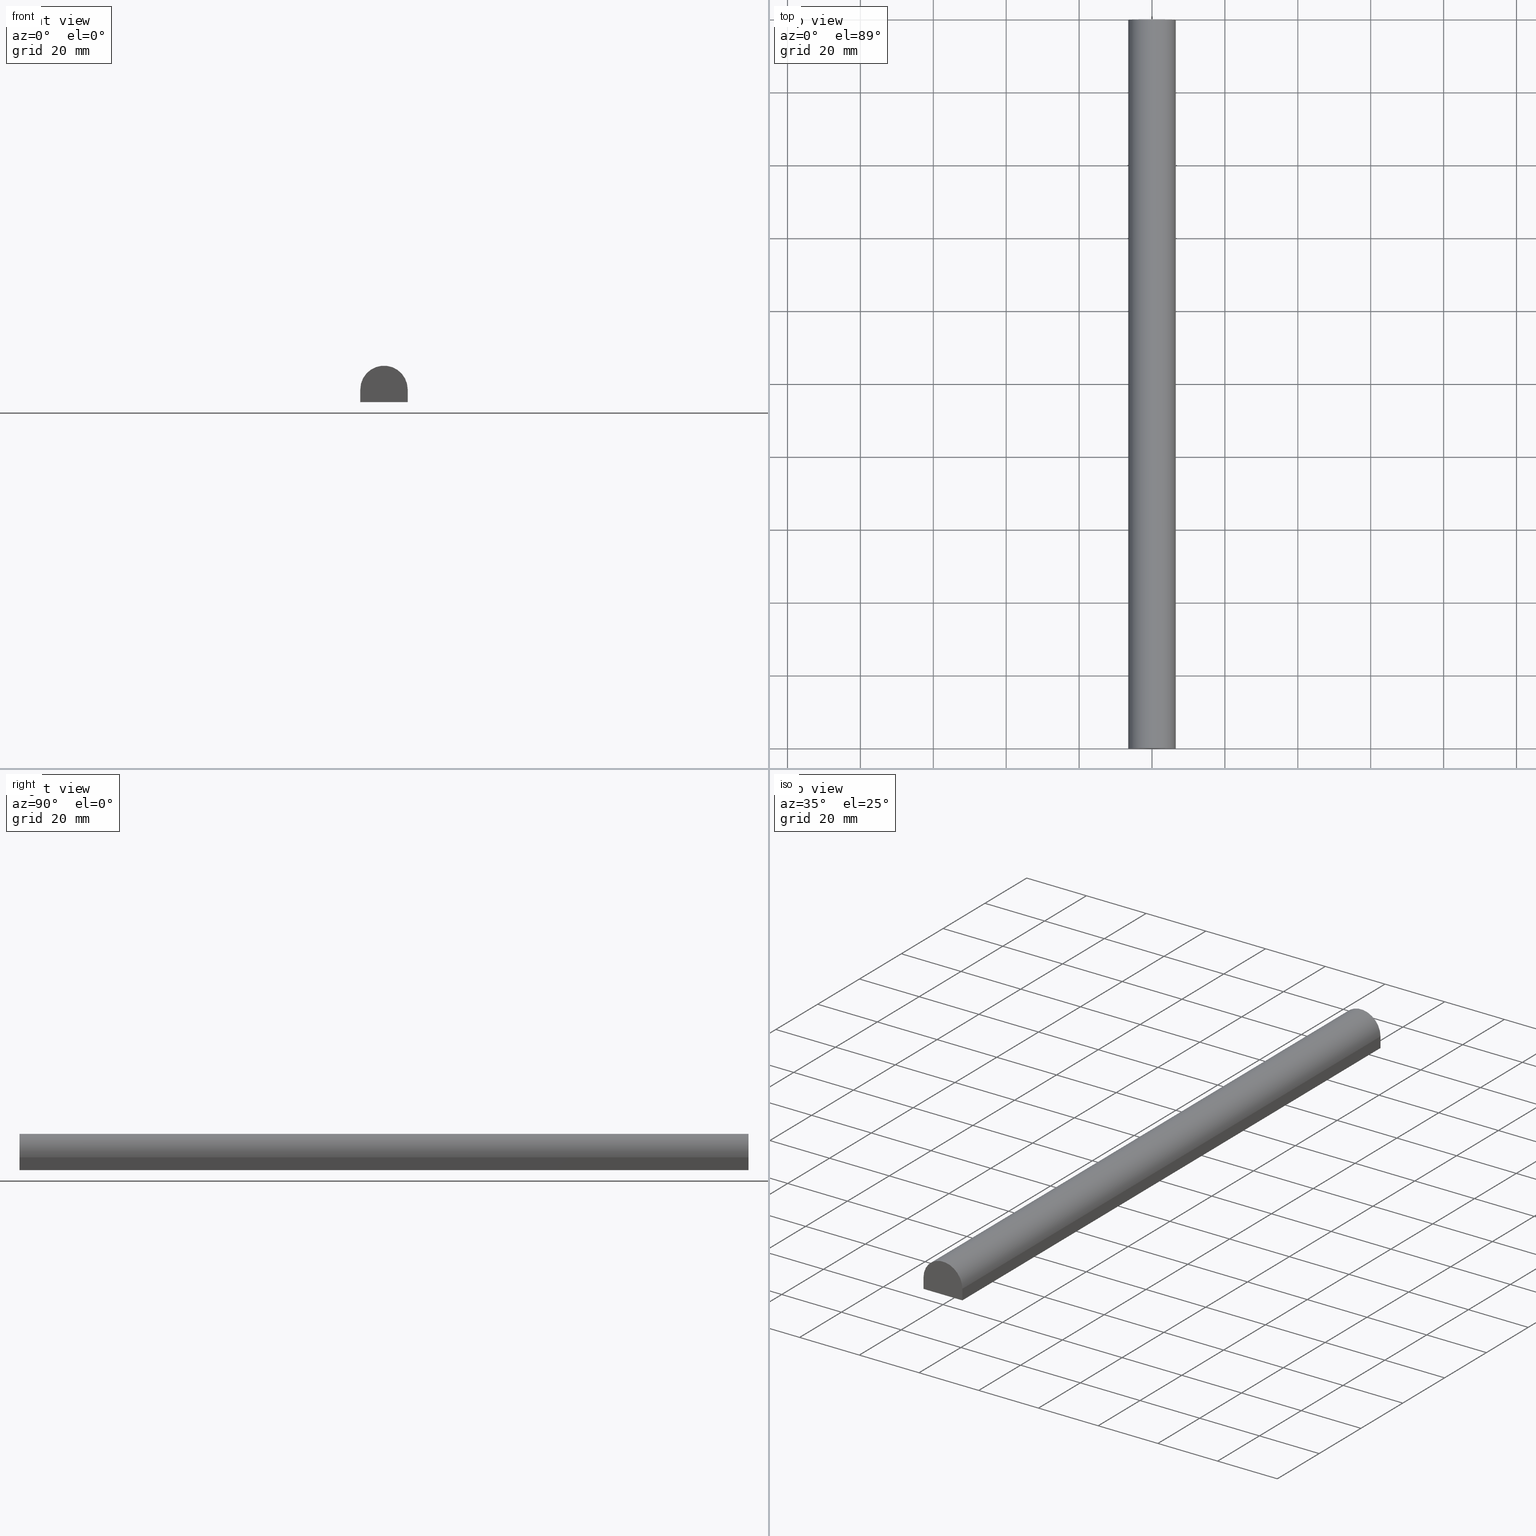
[diagram: canonical four-view strip — front | top / right | iso, engineering-drawing reading convention]
A machine part, canonical four-view strip (front | top / right | iso — engineering-drawing reading convention). The complete STEP part file that produces these views, byte-faithful:
ISO-10303-21;
HEADER;
FILE_DESCRIPTION (( 'STEP AP214' ),
    '1' );
FILE_NAME ('TM_341W_5.STEP',
    '2016-05-10T04:14:55',
    ( '' ),
    ( '' ),
    'SwSTEP 2.0',
    'SolidWorks 2015',
    '' );
FILE_SCHEMA (( 'AUTOMOTIVE_DESIGN' ));
ENDSEC;

DATA;
#1 = VERTEX_POINT ( 'NONE', #234 ) ;
#2 = STYLED_ITEM ( 'NONE', ( #117 ), #193 ) ;
#3 = CARTESIAN_POINT ( 'NONE',  ( -6.500000000000000000, 1000.000000000000000, -5.000000000000000000 ) ) ;
#4 = CARTESIAN_POINT ( 'NONE',  ( 0.0000000000000000000, 0.0000000000000000000, 0.0000000000000000000 ) ) ;
#5 = CARTESIAN_POINT ( 'NONE',  ( 6.500000000000000000, 1000.000000000000000, -5.000000000000000000 ) ) ;
#6 = PLANE ( 'NONE',  #60 ) ;
#7 = AXIS2_PLACEMENT_3D ( 'NONE', #79, #198, #221 ) ;
#8 = CARTESIAN_POINT ( 'NONE',  ( 6.500000000000000000, 1000.000000000000000, -1.500000000000000000 ) ) ;
#9 = VECTOR ( 'NONE', #52, 1000.000000000000000 ) ;
#10 = CARTESIAN_POINT ( 'NONE',  ( 0.0000000000000000000, 0.0000000000000000000, -5.000000000000000000 ) ) ;
#11 = ORIENTED_EDGE ( 'NONE', *, *, #72, .T. ) ;
#12 =( GEOMETRIC_REPRESENTATION_CONTEXT ( 3 ) GLOBAL_UNCERTAINTY_ASSIGNED_CONTEXT ( ( #155 ) ) GLOBAL_UNIT_ASSIGNED_CONTEXT ( ( #166, #25, #43 ) ) REPRESENTATION_CONTEXT ( 'NONE', 'WORKASPACE' ) );
#13 = CYLINDRICAL_SURFACE ( 'NONE', #180, 6.500000000000000900 ) ;
#14 = EDGE_CURVE ( 'NONE', #135, #1, #136, .T. ) ;
#15 = PRESENTATION_LAYER_ASSIGNMENT (  '', '', ( #2 ) ) ;
#16 = APPLICATION_PROTOCOL_DEFINITION ( 'draft international standard', 'automotive_design', 1998, #224 ) ;
#17 = SURFACE_STYLE_FILL_AREA ( #170 ) ;
#18 = ORIENTED_EDGE ( 'NONE', *, *, #14, .F. ) ;
#19 =( LENGTH_UNIT ( ) NAMED_UNIT ( * ) SI_UNIT ( .MILLI., .METRE. ) );
#20 = FACE_OUTER_BOUND ( 'NONE', #100, .T. ) ;
#21 = CARTESIAN_POINT ( 'NONE',  ( -6.500000000000000000, 1000.000000000000000, -5.000000000000000000 ) ) ;
#22 = CIRCLE ( 'NONE', #215, 6.499999999999999100 ) ;
#23 = ORIENTED_EDGE ( 'NONE', *, *, #112, .F. ) ;
#24 = VERTEX_POINT ( 'NONE', #158 ) ;
#25 =( NAMED_UNIT ( * ) PLANE_ANGLE_UNIT ( ) SI_UNIT ( $, .RADIAN. ) );
#26 = STYLED_ITEM ( 'NONE', ( #212 ), #196 ) ;
#27 = EDGE_CURVE ( 'NONE', #97, #65, #168, .T. ) ;
#28 = MECHANICAL_DESIGN_GEOMETRIC_PRESENTATION_REPRESENTATION (  '', ( #2 ), #40 ) ;
#29 = AXIS2_PLACEMENT_3D ( 'NONE', #219, #48, #203 ) ;
#30 = CARTESIAN_POINT ( 'NONE',  ( 0.0000000000000000000, 0.0000000000000000000, -1.500000000000000000 ) ) ;
#31 =( NAMED_UNIT ( * ) SI_UNIT ( $, .STERADIAN. ) SOLID_ANGLE_UNIT ( ) );
#32 = APPLICATION_PROTOCOL_DEFINITION ( 'draft international standard', 'automotive_design', 1998, #162 ) ;
#33 = ORIENTED_EDGE ( 'NONE', *, *, #112, .T. ) ;
#34 =( NAMED_UNIT ( * ) PLANE_ANGLE_UNIT ( ) SI_UNIT ( $, .RADIAN. ) );
#35 = SURFACE_STYLE_USAGE ( .BOTH. , #123 ) ;
#36 = CARTESIAN_POINT ( 'NONE',  ( 6.500000000000000000, 200.0000000000000000, -5.000000000000000000 ) ) ;
#37 =( GEOMETRIC_REPRESENTATION_CONTEXT ( 3 ) GLOBAL_UNCERTAINTY_ASSIGNED_CONTEXT ( ( #147 ) ) GLOBAL_UNIT_ASSIGNED_CONTEXT ( ( #179, #159, #31 ) ) REPRESENTATION_CONTEXT ( 'NONE', 'WORKASPACE' ) );
#38 = AXIS2_PLACEMENT_3D ( 'NONE', #4, #149, #211 ) ;
#39 = EDGE_CURVE ( 'NONE', #1, #97, #108, .T. ) ;
#40 =( GEOMETRIC_REPRESENTATION_CONTEXT ( 3 ) GLOBAL_UNCERTAINTY_ASSIGNED_CONTEXT ( ( #105 ) ) GLOBAL_UNIT_ASSIGNED_CONTEXT ( ( #19, #124, #204 ) ) REPRESENTATION_CONTEXT ( 'NONE', 'WORKASPACE' ) );
#41 = VECTOR ( 'NONE', #200, 1000.000000000000000 ) ;
#42 = CARTESIAN_POINT ( 'NONE',  ( 0.0000000000000000000, 200.0000000000000000, -1.500000000000000000 ) ) ;
#43 =( NAMED_UNIT ( * ) SI_UNIT ( $, .STERADIAN. ) SOLID_ANGLE_UNIT ( ) );
#44 = ORIENTED_EDGE ( 'NONE', *, *, #101, .T. ) ;
#45 = CARTESIAN_POINT ( 'NONE',  ( 6.500000000000000000, 200.0000000000000000, 0.0000000000000000000 ) ) ;
#46 = FACE_OUTER_BOUND ( 'NONE', #140, .T. ) ;
#47 = EDGE_CURVE ( 'NONE', #24, #65, #119, .T. ) ;
#48 = DIRECTION ( 'NONE',  ( 0.0000000000000000000, 0.0000000000000000000, 1.000000000000000000 ) ) ;
#49 = ADVANCED_FACE ( 'NONE', ( #46 ), #230, .T. ) ;
#50 = PRODUCT_CONTEXT ( 'NONE', #207, 'mechanical' ) ;
#51 = DIRECTION ( 'NONE',  ( 1.000000000000000000, 0.0000000000000000000, 0.0000000000000000000 ) ) ;
#52 = DIRECTION ( 'NONE',  ( 0.0000000000000000000, -1.000000000000000000, 0.0000000000000000000 ) ) ;
#53 = VECTOR ( 'NONE', #90, 1000.000000000000000 ) ;
#54 = DIRECTION ( 'NONE',  ( 0.0000000000000000000, 0.0000000000000000000, -1.000000000000000000 ) ) ;
#55 = DIRECTION ( 'NONE',  ( -0.0000000000000000000, 1.000000000000000000, 0.0000000000000000000 ) ) ;
#56 = EDGE_LOOP ( 'NONE', ( #120, #217, #11, #195 ) ) ;
#57 = SURFACE_SIDE_STYLE ('',( #17 ) ) ;
#58 = CARTESIAN_POINT ( 'NONE',  ( 0.0000000000000000000, 0.0000000000000000000, 0.0000000000000000000 ) ) ;
#59 = ORIENTED_EDGE ( 'NONE', *, *, #240, .F. ) ;
#60 = AXIS2_PLACEMENT_3D ( 'NONE', #21, #111, #189 ) ;
#61 = EDGE_CURVE ( 'NONE', #65, #135, #174, .T. ) ;
#62 = DIRECTION ( 'NONE',  ( 0.0000000000000000000, 0.0000000000000000000, 1.000000000000000000 ) ) ;
#63 = LINE ( 'NONE', #3, #9 ) ;
#64 = VECTOR ( 'NONE', #93, 1000.000000000000000 ) ;
#65 = VERTEX_POINT ( 'NONE', #216 ) ;
#66 = ADVANCED_FACE ( 'NONE', ( #141 ), #103, .T. ) ;
#67 = APPLICATION_PROTOCOL_DEFINITION ( 'draft international standard', 'automotive_design', 1998, #207 ) ;
#68 = VECTOR ( 'NONE', #218, 1000.000000000000000 ) ;
#69 = CARTESIAN_POINT ( 'NONE',  ( 0.0000000000000000000, 0.0000000000000000000, 0.0000000000000000000 ) ) ;
#70 = ORIENTED_EDGE ( 'NONE', *, *, #27, .F. ) ;
#71 = CARTESIAN_POINT ( 'NONE',  ( 0.0000000000000000000, 200.0000000000000000, -5.000000000000000000 ) ) ;
#72 = EDGE_CURVE ( 'NONE', #24, #194, #22, .T. ) ;
#73 = ORIENTED_EDGE ( 'NONE', *, *, #101, .F. ) ;
#74 = CARTESIAN_POINT ( 'NONE',  ( 6.500000000000000000, 0.0000000000000000000, -5.000000000000000000 ) ) ;
#75 = AXIS2_PLACEMENT_3D ( 'NONE', #225, #86, #208 ) ;
#76 = DIRECTION ( 'NONE',  ( 0.0000000000000000000, -1.000000000000000000, 0.0000000000000000000 ) ) ;
#77 = SHAPE_REPRESENTATION ( 'rubber foam', ( #29 ), #37 ) ;
#78 = SHAPE_DEFINITION_REPRESENTATION ( #99, #160 ) ;
#79 = CARTESIAN_POINT ( 'NONE',  ( -6.500000000000000000, 1000.000000000000000, -1.500000000000000000 ) ) ;
#80 = VECTOR ( 'NONE', #231, 1000.000000000000000 ) ;
#81 = ORIENTED_EDGE ( 'NONE', *, *, #61, .T. ) ;
#82 = FACE_OUTER_BOUND ( 'NONE', #169, .T. ) ;
#83 = ORIENTED_EDGE ( 'NONE', *, *, #14, .T. ) ;
#84 = FACE_OUTER_BOUND ( 'NONE', #56, .T. ) ;
#85 = AXIS2_PLACEMENT_3D ( 'NONE', #69, #183, #51 ) ;
#86 = DIRECTION ( 'NONE',  ( 0.0000000000000000000, 0.0000000000000000000, 1.000000000000000000 ) ) ;
#87 = ORIENTED_EDGE ( 'NONE', *, *, #27, .T. ) ;
#88 = LINE ( 'NONE', #5, #222 ) ;
#89 = EDGE_CURVE ( 'NONE', #194, #135, #205, .T. ) ;
#90 = DIRECTION ( 'NONE',  ( 1.000000000000000000, -0.0000000000000000000, -0.0000000000000000000 ) ) ;
#91 = SHAPE_REPRESENTATION_RELATIONSHIP ( 'NONE' , 'NONE' ,  #77, #193 ) ;
#92 = EDGE_LOOP ( 'NONE', ( #146, #73, #33, #115 ) ) ;
#93 = DIRECTION ( 'NONE',  ( 0.0000000000000000000, -1.000000000000000000, 0.0000000000000000000 ) ) ;
#94 = CONTEXT_DEPENDENT_SHAPE_REPRESENTATION ( #223, #237 ) ;
#95 = PLANE ( 'NONE',  #98 ) ;
#96 = CARTESIAN_POINT ( 'NONE',  ( -6.500000000000000000, 0.0000000000000000000, -1.500000000000000000 ) ) ;
#97 = VERTEX_POINT ( 'NONE', #74 ) ;
#98 = AXIS2_PLACEMENT_3D ( 'NONE', #185, #151, #191 ) ;
#99 = PRODUCT_DEFINITION_SHAPE ( 'NONE', 'NONE',  #150 ) ;
#100 = EDGE_LOOP ( 'NONE', ( #137, #87, #81, #83 ) ) ;
#101 = EDGE_CURVE ( 'NONE', #199, #1, #63, .T. ) ;
#102 =( GEOMETRIC_REPRESENTATION_CONTEXT ( 3 ) GLOBAL_UNCERTAINTY_ASSIGNED_CONTEXT ( ( #165 ) ) GLOBAL_UNIT_ASSIGNED_CONTEXT ( ( #164, #34, #143 ) ) REPRESENTATION_CONTEXT ( 'NONE', 'WORKASPACE' ) );
#103 = PLANE ( 'NONE',  #148 ) ;
#104 = DIRECTION ( 'NONE',  ( 0.0000000000000000000, -1.000000000000000000, 0.0000000000000000000 ) ) ;
#105 = UNCERTAINTY_MEASURE_WITH_UNIT (LENGTH_MEASURE( 1.000000000000000100E-005 ), #19, 'distance_accuracy_value', 'NONE');
#106 = APPLICATION_PROTOCOL_DEFINITION ( 'draft international standard', 'automotive_design', 1998, #238 ) ;
#107 = DIRECTION ( 'NONE',  ( 1.000000000000000000, 0.0000000000000000000, 0.0000000000000000000 ) ) ;
#108 = LINE ( 'NONE', #10, #80 ) ;
#109 = AXIS2_PLACEMENT_3D ( 'NONE', #30, #197, #62 ) ;
#110 = MECHANICAL_DESIGN_GEOMETRIC_PRESENTATION_REPRESENTATION (  '', ( #26 ), #12 ) ;
#111 = DIRECTION ( 'NONE',  ( 0.0000000000000000000, 0.0000000000000000000, -1.000000000000000000 ) ) ;
#112 = EDGE_CURVE ( 'NONE', #199, #184, #154, .T. ) ;
#113 = AXIS2_PLACEMENT_3D ( 'NONE', #58, #239, #107 ) ;
#114 = DIRECTION ( 'NONE',  ( 0.0000000000000000000, -1.000000000000000000, 0.0000000000000000000 ) ) ;
#115 = ORIENTED_EDGE ( 'NONE', *, *, #118, .T. ) ;
#116 = PRODUCT_DEFINITION_SHAPE ( 'NONE', 'NONE',  #121 ) ;
#117 = PRESENTATION_STYLE_ASSIGNMENT (( #35 ) ) ;
#118 = EDGE_CURVE ( 'NONE', #184, #97, #88, .T. ) ;
#119 = LINE ( 'NONE', #8, #177 ) ;
#120 = ORIENTED_EDGE ( 'NONE', *, *, #61, .F. ) ;
#121 = PRODUCT_DEFINITION ( 'UNKNOWN', '', #190, #128 ) ;
#122 = PRODUCT_CONTEXT ( 'NONE', #224, 'mechanical' ) ;
#123 = SURFACE_SIDE_STYLE ('',( #171 ) ) ;
#124 =( NAMED_UNIT ( * ) PLANE_ANGLE_UNIT ( ) SI_UNIT ( $, .RADIAN. ) );
#125 = PRODUCT ( 'rubber foam', 'rubber foam', '', ( #122 ) ) ;
#126 = VECTOR ( 'NONE', #131, 1000.000000000000000 ) ;
#127 = CARTESIAN_POINT ( 'NONE',  ( -6.500000000000000000, 200.0000000000000000, -5.000000000000000000 ) ) ;
#128 = PRODUCT_DEFINITION_CONTEXT ( 'detailed design', #238, 'design' ) ;
#129 = ORIENTED_EDGE ( 'NONE', *, *, #118, .F. ) ;
#130 = FILL_AREA_STYLE_COLOUR ( '', #144 ) ;
#131 = DIRECTION ( 'NONE',  ( -0.0000000000000000000, -0.0000000000000000000, -1.000000000000000000 ) ) ;
#132 = SHAPE_DEFINITION_REPRESENTATION ( #116, #77 ) ;
#133 = ORIENTED_EDGE ( 'NONE', *, *, #89, .F. ) ;
#134 = LINE ( 'NONE', #45, #139 ) ;
#135 = VERTEX_POINT ( 'NONE', #96 ) ;
#136 = LINE ( 'NONE', #232, #41 ) ;
#137 = ORIENTED_EDGE ( 'NONE', *, *, #39, .T. ) ;
#138 = PRESENTATION_LAYER_ASSIGNMENT (  '', '', ( #26 ) ) ;
#139 = VECTOR ( 'NONE', #145, 1000.000000000000000 ) ;
#140 = EDGE_LOOP ( 'NONE', ( #18, #133, #163, #44 ) ) ;
#141 = FACE_OUTER_BOUND ( 'NONE', #152, .T. ) ;
#142 = FILL_AREA_STYLE_COLOUR ( '', #228 ) ;
#143 =( NAMED_UNIT ( * ) SI_UNIT ( $, .STERADIAN. ) SOLID_ANGLE_UNIT ( ) );
#144 = COLOUR_RGB ( '',0.7921568627450980000, 0.8196078431372548800, 0.9333333333333333500 ) ;
#145 = DIRECTION ( 'NONE',  ( -0.0000000000000000000, -0.0000000000000000000, 1.000000000000000000 ) ) ;
#146 = ORIENTED_EDGE ( 'NONE', *, *, #39, .F. ) ;
#147 = UNCERTAINTY_MEASURE_WITH_UNIT (LENGTH_MEASURE( 1.000000000000000100E-005 ), #179, 'distance_accuracy_value', 'NONE');
#148 = AXIS2_PLACEMENT_3D ( 'NONE', #201, #55, #213 ) ;
#149 = DIRECTION ( 'NONE',  ( -0.0000000000000000000, 1.000000000000000000, 0.0000000000000000000 ) ) ;
#150 = PRODUCT_DEFINITION ( 'UNKNOWN', '', #161, #157 ) ;
#151 = DIRECTION ( 'NONE',  ( 1.000000000000000000, 0.0000000000000000000, 0.0000000000000000000 ) ) ;
#152 = EDGE_LOOP ( 'NONE', ( #23, #186, #192, #59 ) ) ;
#153 = CARTESIAN_POINT ( 'NONE',  ( -6.500000000000000000, 1000.000000000000000, -1.500000000000000000 ) ) ;
#154 = LINE ( 'NONE', #71, #53 ) ;
#155 = UNCERTAINTY_MEASURE_WITH_UNIT (LENGTH_MEASURE( 1.000000000000000100E-005 ), #166, 'distance_accuracy_value', 'NONE');
#156 = CARTESIAN_POINT ( 'NONE',  ( 6.500000000000000000, 0.0000000000000000000, 0.0000000000000000000 ) ) ;
#157 = PRODUCT_DEFINITION_CONTEXT ( 'detailed design', #162, 'design' ) ;
#158 = CARTESIAN_POINT ( 'NONE',  ( 6.500000000000000000, 200.0000000000000000, -1.500000000000000000 ) ) ;
#159 =( NAMED_UNIT ( * ) PLANE_ANGLE_UNIT ( ) SI_UNIT ( $, .RADIAN. ) );
#160 = SHAPE_REPRESENTATION ( 'TM_341W_5', ( #113, #85 ), #102 ) ;
#161 = PRODUCT_DEFINITION_FORMATION_WITH_SPECIFIED_SOURCE ( 'ANY', '', #226, .NOT_KNOWN. ) ;
#162 = APPLICATION_CONTEXT ( 'automotive_design' ) ;
#163 = ORIENTED_EDGE ( 'NONE', *, *, #167, .T. ) ;
#164 =( LENGTH_UNIT ( ) NAMED_UNIT ( * ) SI_UNIT ( .MILLI., .METRE. ) );
#165 = UNCERTAINTY_MEASURE_WITH_UNIT (LENGTH_MEASURE( 1.000000000000000100E-005 ), #164, 'distance_accuracy_value', 'NONE');
#166 =( LENGTH_UNIT ( ) NAMED_UNIT ( * ) SI_UNIT ( .MILLI., .METRE. ) );
#167 = EDGE_CURVE ( 'NONE', #194, #199, #235, .T. ) ;
#168 = LINE ( 'NONE', #156, #68 ) ;
#169 = EDGE_LOOP ( 'NONE', ( #70, #129, #175, #173 ) ) ;
#170 = FILL_AREA_STYLE ('',( #130 ) ) ;
#171 = SURFACE_STYLE_FILL_AREA ( #182 ) ;
#172 = PLANE ( 'NONE',  #38 ) ;
#173 = ORIENTED_EDGE ( 'NONE', *, *, #47, .T. ) ;
#174 = CIRCLE ( 'NONE', #109, 6.499999999999999100 ) ;
#175 = ORIENTED_EDGE ( 'NONE', *, *, #240, .T. ) ;
#176 = PRODUCT_RELATED_PRODUCT_CATEGORY ( 'part', '', ( #226 ) ) ;
#177 = VECTOR ( 'NONE', #104, 1000.000000000000000 ) ;
#178 = ADVANCED_FACE ( 'NONE', ( #84 ), #13, .T. ) ;
#179 =( LENGTH_UNIT ( ) NAMED_UNIT ( * ) SI_UNIT ( .MILLI., .METRE. ) );
#180 = AXIS2_PLACEMENT_3D ( 'NONE', #229, #114, #54 ) ;
#181 = ADVANCED_FACE ( 'NONE', ( #220 ), #6, .T. ) ;
#182 = FILL_AREA_STYLE ('',( #142 ) ) ;
#183 = DIRECTION ( 'NONE',  ( 0.0000000000000000000, 0.0000000000000000000, 1.000000000000000000 ) ) ;
#184 = VERTEX_POINT ( 'NONE', #36 ) ;
#185 = CARTESIAN_POINT ( 'NONE',  ( 6.500000000000000000, 1000.000000000000000, -5.000000000000000000 ) ) ;
#186 = ORIENTED_EDGE ( 'NONE', *, *, #167, .F. ) ;
#187 = ITEM_DEFINED_TRANSFORMATION ( 'NONE', 'NONE', #85,  #29 ) ;
#188 = CARTESIAN_POINT ( 'NONE',  ( -6.500000000000000000, 200.0000000000000000, 0.0000000000000000000 ) ) ;
#189 = DIRECTION ( 'NONE',  ( -1.000000000000000000, 0.0000000000000000000, 0.0000000000000000000 ) ) ;
#190 = PRODUCT_DEFINITION_FORMATION_WITH_SPECIFIED_SOURCE ( 'ANY', '', #125, .NOT_KNOWN. ) ;
#191 = DIRECTION ( 'NONE',  ( 0.0000000000000000000, 0.0000000000000000000, -1.000000000000000000 ) ) ;
#192 = ORIENTED_EDGE ( 'NONE', *, *, #72, .F. ) ;
#193 = ADVANCED_BREP_SHAPE_REPRESENTATION ( '', ( #196, #29 ), #37 ) ;
#194 = VERTEX_POINT ( 'NONE', #227 ) ;
#195 = ORIENTED_EDGE ( 'NONE', *, *, #89, .T. ) ;
#196 = MANIFOLD_SOLID_BREP ( '���߰�1', #233 ) ;
#197 = DIRECTION ( 'NONE',  ( -0.0000000000000000000, -1.000000000000000000, -0.0000000000000000000 ) ) ;
#198 = DIRECTION ( 'NONE',  ( -1.000000000000000000, 0.0000000000000000000, 0.0000000000000000000 ) ) ;
#199 = VERTEX_POINT ( 'NONE', #127 ) ;
#200 = DIRECTION ( 'NONE',  ( -0.0000000000000000000, -0.0000000000000000000, -1.000000000000000000 ) ) ;
#201 = CARTESIAN_POINT ( 'NONE',  ( 0.0000000000000000000, 200.0000000000000000, 0.0000000000000000000 ) ) ;
#202 = ADVANCED_FACE ( 'NONE', ( #82 ), #95, .T. ) ;
#203 = DIRECTION ( 'NONE',  ( 1.000000000000000000, 0.0000000000000000000, 0.0000000000000000000 ) ) ;
#204 =( NAMED_UNIT ( * ) SI_UNIT ( $, .STERADIAN. ) SOLID_ANGLE_UNIT ( ) );
#205 = LINE ( 'NONE', #153, #64 ) ;
#206 = PRODUCT_RELATED_PRODUCT_CATEGORY ( 'part', '', ( #125 ) ) ;
#207 = APPLICATION_CONTEXT ( 'automotive_design' ) ;
#208 = DIRECTION ( 'NONE',  ( 1.000000000000000000, 0.0000000000000000000, 0.0000000000000000000 ) ) ;
#209 = DIRECTION ( 'NONE',  ( 0.0000000000000000000, 0.0000000000000000000, 1.000000000000000000 ) ) ;
#210 = DIRECTION ( 'NONE',  ( -0.0000000000000000000, -1.000000000000000000, -0.0000000000000000000 ) ) ;
#211 = DIRECTION ( 'NONE',  ( 1.000000000000000000, 0.0000000000000000000, 0.0000000000000000000 ) ) ;
#212 = PRESENTATION_STYLE_ASSIGNMENT (( #214 ) ) ;
#213 = DIRECTION ( 'NONE',  ( 1.000000000000000000, 0.0000000000000000000, 0.0000000000000000000 ) ) ;
#214 = SURFACE_STYLE_USAGE ( .BOTH. , #57 ) ;
#215 = AXIS2_PLACEMENT_3D ( 'NONE', #42, #210, #209 ) ;
#216 = CARTESIAN_POINT ( 'NONE',  ( 6.500000000000000000, 0.0000000000000000000, -1.500000000000000000 ) ) ;
#217 = ORIENTED_EDGE ( 'NONE', *, *, #47, .F. ) ;
#218 = DIRECTION ( 'NONE',  ( -0.0000000000000000000, -0.0000000000000000000, 1.000000000000000000 ) ) ;
#219 = CARTESIAN_POINT ( 'NONE',  ( 0.0000000000000000000, 0.0000000000000000000, 0.0000000000000000000 ) ) ;
#220 = FACE_OUTER_BOUND ( 'NONE', #92, .T. ) ;
#221 = DIRECTION ( 'NONE',  ( 0.0000000000000000000, 0.0000000000000000000, 1.000000000000000000 ) ) ;
#222 = VECTOR ( 'NONE', #76, 1000.000000000000000 ) ;
#223 =( REPRESENTATION_RELATIONSHIP ('NONE','NONE', #160, #77 ) REPRESENTATION_RELATIONSHIP_WITH_TRANSFORMATION ( #187 )SHAPE_REPRESENTATION_RELATIONSHIP( ) );
#224 = APPLICATION_CONTEXT ( 'automotive_design' ) ;
#225 = CARTESIAN_POINT ( 'NONE',  ( 0.0000000000000000000, 0.0000000000000000000, 0.0000000000000000000 ) ) ;
#226 = PRODUCT ( 'TM_341W_5', 'TM_341W_5', '', ( #50 ) ) ;
#227 = CARTESIAN_POINT ( 'NONE',  ( -6.500000000000000000, 200.0000000000000000, -1.500000000000000000 ) ) ;
#228 = COLOUR_RGB ( '',0.7921568627450980000, 0.8196078431372548800, 0.9333333333333333500 ) ;
#229 = CARTESIAN_POINT ( 'NONE',  ( 0.0000000000000000000, 1000.000000000000000, -1.500000000000000000 ) ) ;
#230 = PLANE ( 'NONE',  #7 ) ;
#231 = DIRECTION ( 'NONE',  ( 1.000000000000000000, -0.0000000000000000000, -0.0000000000000000000 ) ) ;
#232 = CARTESIAN_POINT ( 'NONE',  ( -6.500000000000000000, 0.0000000000000000000, 0.0000000000000000000 ) ) ;
#233 = CLOSED_SHELL ( 'NONE', ( #181, #202, #178, #49, #66, #236 ) ) ;
#234 = CARTESIAN_POINT ( 'NONE',  ( -6.500000000000000000, 0.0000000000000000000, -5.000000000000000000 ) ) ;
#235 = LINE ( 'NONE', #188, #126 ) ;
#236 = ADVANCED_FACE ( 'NONE', ( #20 ), #172, .F. ) ;
#237 = PRODUCT_DEFINITION_SHAPE ( 'NONE', 'NONE',  #241 ) ;
#238 = APPLICATION_CONTEXT ( 'automotive_design' ) ;
#239 = DIRECTION ( 'NONE',  ( 0.0000000000000000000, 0.0000000000000000000, 1.000000000000000000 ) ) ;
#240 = EDGE_CURVE ( 'NONE', #184, #24, #134, .T. ) ;
#241 = NEXT_ASSEMBLY_USAGE_OCCURRENCE ( 'NAUO1', ' ', ' ', #150, #121, $ ) ;
ENDSEC;
END-ISO-10303-21;
